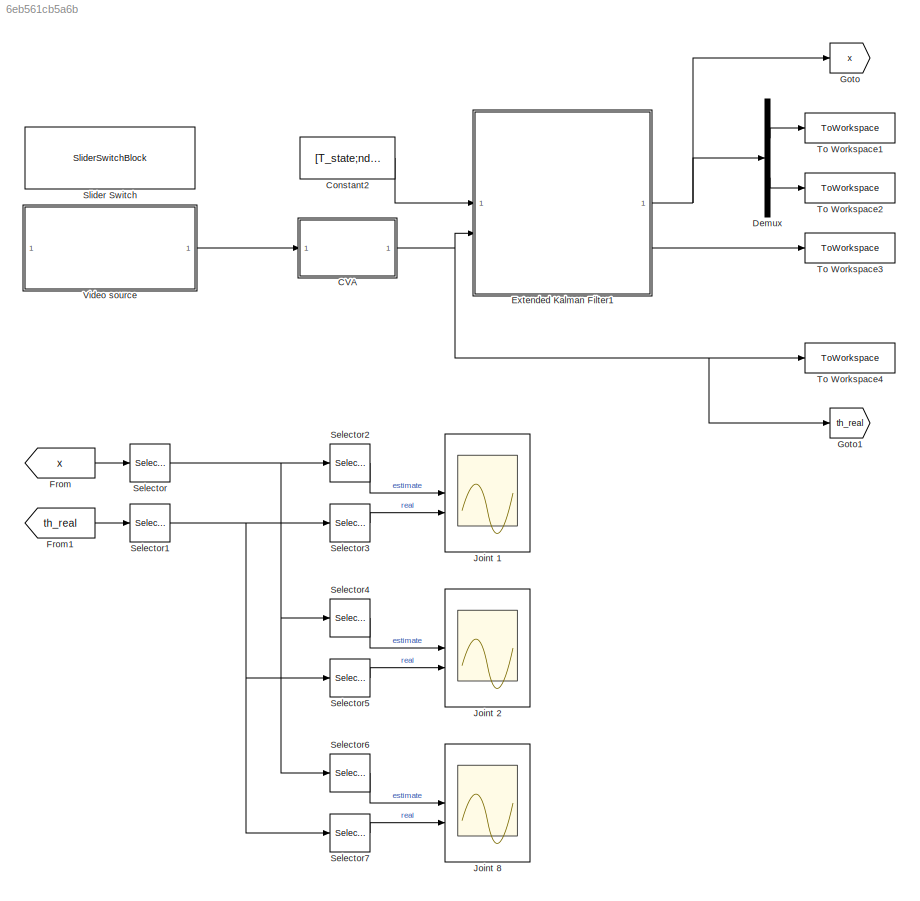
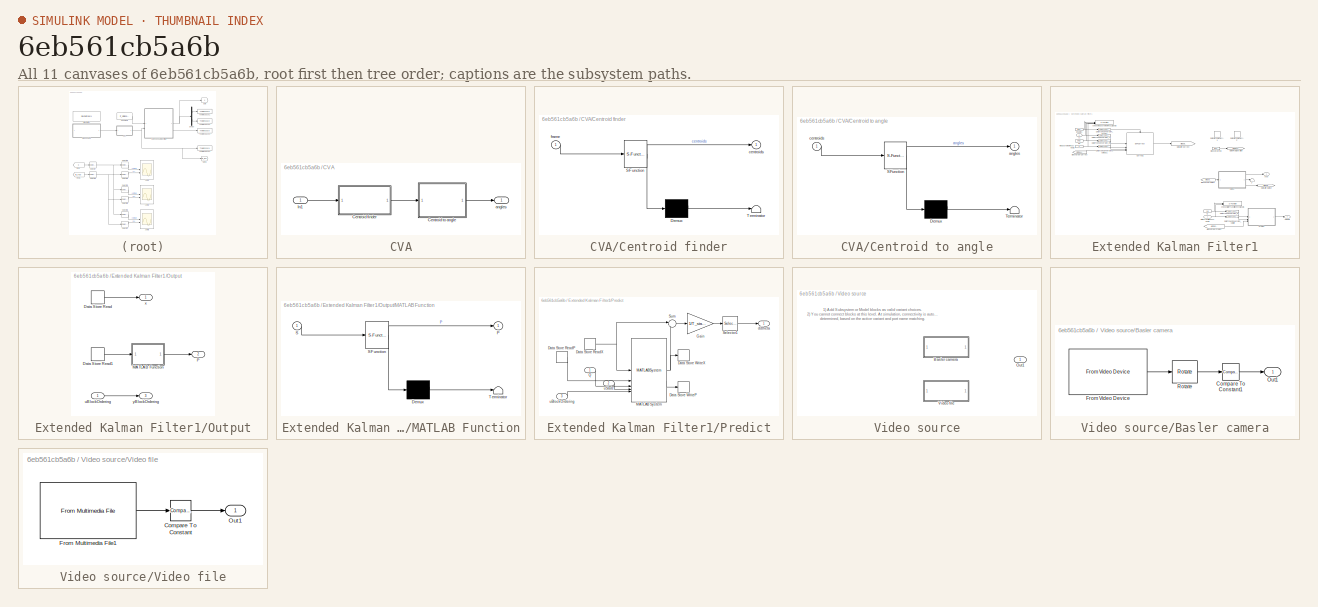
[diagram: thumbnail index - all 11 canvases of the model, root first then tree order]
MODEL slx_6eb561cb5a6b
KIND model
CONFIG AbsTol = auto
CONFIG EnableMultiTasking = off
CONFIG FixedStep = min(T_state,Ts)
CONFIG InitFcn = NPSimulink_init
CONFIG MaxStep = auto
CONFIG MinStep = auto
CONFIG RelTol = 1e-3
CONFIG SampleTimeConstraint = Unconstrained
CONFIG SolverName = FixedStepAuto
CONFIG StartTime = 0.0
CONFIG StopTime = Tstop
BLOCK [SubSystem] CVA
BLOCK [SubSystem] CVA/Centroid finder
  ErrorFcn = Stateflow.Translate.translate
  PermitHierarchicalResolution = ExplicitOnly
  SFBlockType = MATLAB Function
  TreatAsAtomicUnit = on
BLOCK [Demux] CVA/Centroid finder/ Demux 
  Outputs = 1
BLOCK [S-Function] CVA/Centroid finder/ SFunction 
  EnableBusSupport = off
  FunctionName = sf_sfun
  PortCounts = [1 2]
  SFcnIsStateOwnerBlock = off
  SFunctionDeploymentMode = off
  Tag = Stateflow S-Function 2
BLOCK [Terminator] CVA/Centroid finder/ Terminator 
BLOCK [Outport] CVA/Centroid finder/centroids
BLOCK [Inport] CVA/Centroid finder/frame
BLOCK [SubSystem] CVA/Centroid to angle
  ErrorFcn = Stateflow.Translate.translate
  PermitHierarchicalResolution = ExplicitOnly
  SFBlockType = MATLAB Function
  TreatAsAtomicUnit = on
BLOCK [Demux] CVA/Centroid to angle/ Demux 
  Outputs = 1
BLOCK [S-Function] CVA/Centroid to angle/ SFunction 
  EnableBusSupport = off
  FunctionName = sf_sfun
  PortCounts = [1 2]
  SFcnIsStateOwnerBlock = off
  SFunctionDeploymentMode = off
  Tag = Stateflow S-Function 3
BLOCK [Terminator] CVA/Centroid to angle/ Terminator 
BLOCK [Outport] CVA/Centroid to angle/angles
BLOCK [Inport] CVA/Centroid to angle/centroids
BLOCK [Inport] CVA/In1
BLOCK [Outport] CVA/angles
BLOCK [Constant] Constant2
  Value = [T_state;ndof]
BLOCK [Demux] Demux
  Outputs = 2
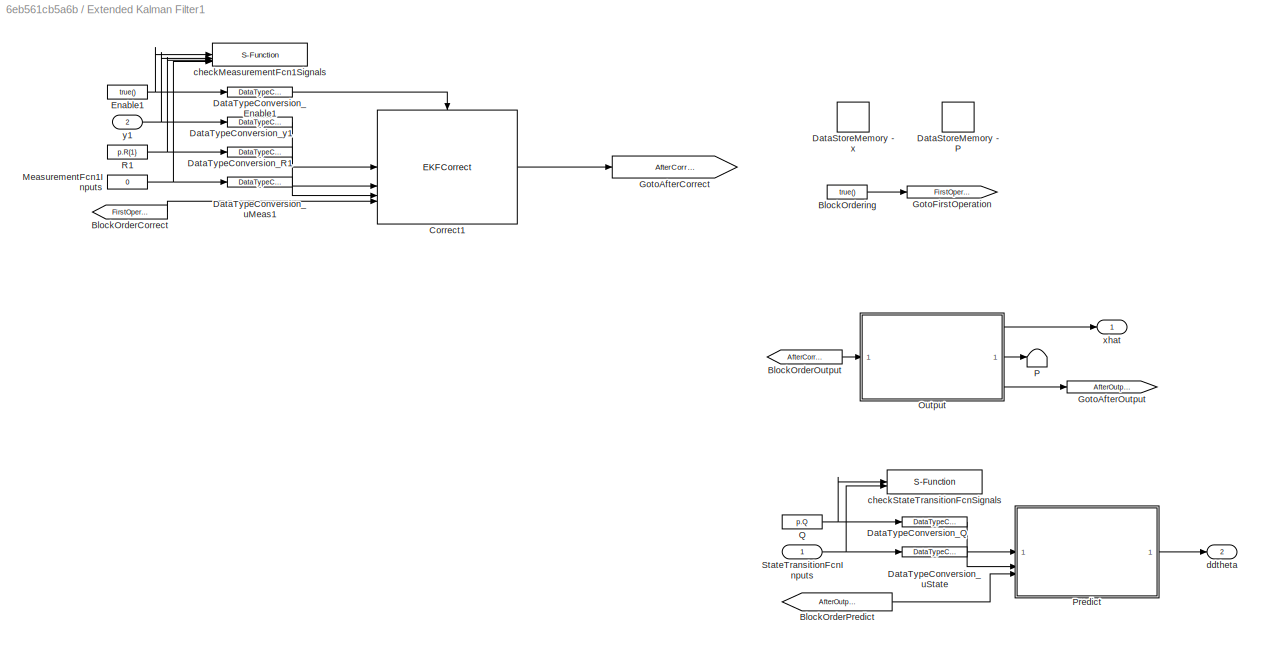
BLOCK [SubSystem] Extended Kalman Filter1
  AncestorBlock = cstblocks/State Estimation/Extended Kalman Filter
  LibrarySourceBlock = cstblocks/State Estimation/Extended Kalman Filter
BLOCK [From] Extended Kalman Filter1/BlockOrderCorrect
  GotoTag = FirstOperation
BLOCK [From] Extended Kalman Filter1/BlockOrderOutput
  GotoTag = AfterCorrect
BLOCK [From] Extended Kalman Filter1/BlockOrderPredict
  GotoTag = AfterOutput
BLOCK [Constant] Extended Kalman Filter1/BlockOrdering
  OutDataTypeStr = boolean
  Value = true()
BLOCK [Reference] Extended Kalman Filter1/Correct1  REF=sharedTrackingLibrary/Extras/EKFCorrect
  SourceBlock = sharedTrackingLibrary/Extras/EKFCorrect
  SourceType = EKFCorrect
BLOCK [DataStoreMemory] Extended Kalman Filter1/DataStoreMemory - P
  DataStoreName = P
  InitialValue = p.InitialCovariance
  OutDataTypeStr = p.DataType
  ShowAdditionalParam = off
BLOCK [DataStoreMemory] Extended Kalman Filter1/DataStoreMemory - x
  DataStoreName = x
  InitialValue = p.InitialState
  OutDataTypeStr = p.DataType
  ShowAdditionalParam = off
BLOCK [DataTypeConversion] Extended Kalman Filter1/DataTypeConversion_Enable1
  OutDataTypeStr = boolean
  RndMeth = Floor
  SaturateOnIntegerOverflow = off
BLOCK [DataTypeConversion] Extended Kalman Filter1/DataTypeConversion_Q
  OutDataTypeStr = p.DataType
  RndMeth = Floor
  SaturateOnIntegerOverflow = off
BLOCK [DataTypeConversion] Extended Kalman Filter1/DataTypeConversion_R1
  OutDataTypeStr = p.DataType
  RndMeth = Floor
  SaturateOnIntegerOverflow = off
BLOCK [DataTypeConversion] Extended Kalman Filter1/DataTypeConversion_uMeas1
  OutDataTypeStr = p.DataType
  RndMeth = Floor
  SaturateOnIntegerOverflow = off
BLOCK [DataTypeConversion] Extended Kalman Filter1/DataTypeConversion_uState
  OutDataTypeStr = p.DataType
  RndMeth = Floor
  SaturateOnIntegerOverflow = off
BLOCK [DataTypeConversion] Extended Kalman Filter1/DataTypeConversion_y1
  OutDataTypeStr = p.DataType
  RndMeth = Floor
  SaturateOnIntegerOverflow = off
BLOCK [Constant] Extended Kalman Filter1/Enable1
  SampleTime = p.SampleTimes.MeasurementFcn(1)
  Value = true()
BLOCK [Goto] Extended Kalman Filter1/GotoAfterCorrect
  GotoTag = AfterCorrect
BLOCK [Goto] Extended Kalman Filter1/GotoAfterOutput
  GotoTag = AfterOutput
BLOCK [Goto] Extended Kalman Filter1/GotoFirstOperation
  GotoTag = FirstOperation
BLOCK [Constant] Extended Kalman Filter1/MeasurementFcn1Inputs
  OutDataTypeStr = p.DataType
  SampleTime = p.SampleTimes.MeasurementFcn(1)
  Value = 0
BLOCK [SubSystem] Extended Kalman Filter1/Output
  SystemSampleTime = p.SampleTimes.Output
  TreatAsAtomicUnit = on
BLOCK [DataStoreRead] Extended Kalman Filter1/Output/Data Store Read
  DataStoreName = x
  IndexOptions = Index vector (dialog)
  Indices = 1
  OutputSizes = 1
BLOCK [DataStoreRead] Extended Kalman Filter1/Output/Data Store Read1
  DataStoreName = P
  IndexOptions = Index vector (dialog)
  Indices = 1
  OutputSizes = 1
BLOCK [SubSystem] Extended Kalman Filter1/Output/MATLAB Function
  ErrorFcn = Stateflow.Translate.translate
  PermitHierarchicalResolution = ExplicitOnly
  SFBlockType = MATLAB Function
  TreatAsAtomicUnit = on
BLOCK [Demux] Extended Kalman Filter1/Output/MATLAB Function/ Demux 
  Outputs = 1
BLOCK [S-Function] Extended Kalman Filter1/Output/MATLAB Function/ SFunction 
  EnableBusSupport = off
  FunctionName = sf_sfun
  PortCounts = [1 2]
  SFcnIsStateOwnerBlock = off
  SFunctionDeploymentMode = off
  Tag = Stateflow S-Function 5
BLOCK [Terminator] Extended Kalman Filter1/Output/MATLAB Function/ Terminator 
BLOCK [Outport] Extended Kalman Filter1/Output/MATLAB Function/P
BLOCK [Inport] Extended Kalman Filter1/Output/MATLAB Function/S
BLOCK [Outport] Extended Kalman Filter1/Output/P
  Port = 2
  VectorParamsAs1DForOutWhenUnconnected = off
BLOCK [Inport] Extended Kalman Filter1/Output/uBlockOrdering
BLOCK [Outport] Extended Kalman Filter1/Output/x
  VectorParamsAs1DForOutWhenUnconnected = off
BLOCK [Outport] Extended Kalman Filter1/Output/yBlockOrdering
  Port = 3
  VectorParamsAs1DForOutWhenUnconnected = off
BLOCK [Terminator] Extended Kalman Filter1/P
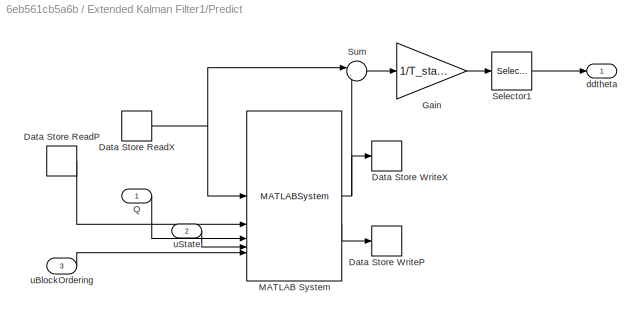
BLOCK [SubSystem] Extended Kalman Filter1/Predict
  SystemSampleTime = p.SampleTimes.StateTransitionFcn
  TreatAsAtomicUnit = on
BLOCK [DataStoreRead] Extended Kalman Filter1/Predict/Data Store ReadP
  DataStoreName = P
  IndexOptions = Index vector (dialog)
  Indices = 1
  OutputSizes = 1
BLOCK [DataStoreRead] Extended Kalman Filter1/Predict/Data Store ReadX
  DataStoreName = x
  IndexOptions = Index vector (dialog)
  Indices = 1
  OutputSizes = 1
BLOCK [DataStoreWrite] Extended Kalman Filter1/Predict/Data Store WriteP
  DataStoreName = P
  IndexOptions = Index vector (dialog)
  Indices = 1
  OutputSizes = 1
BLOCK [DataStoreWrite] Extended Kalman Filter1/Predict/Data Store WriteX
  DataStoreName = x
  IndexOptions = Index vector (dialog)
  Indices = 1
  OutputSizes = 1
BLOCK [Gain] Extended Kalman Filter1/Predict/Gain
  Gain = 1/T_state
BLOCK [MATLABSystem] Extended Kalman Filter1/Predict/MATLAB System
  DataType = DataType
  DlgParamStruct = pS
  MaskType = matlabshared.tracking.internal.blocks.ekfPredictFcn
  SLFcn = SLFcnsToRegister
  SimulateUsing = Code generation
  System = matlabshared.tracking.internal.blocks.ekfPredictFcn
BLOCK [Inport] Extended Kalman Filter1/Predict/Q
  SampleTime = SampleTime
BLOCK [Selector] Extended Kalman Filter1/Predict/Selector1
  IndexOptions = Index vector (dialog)
  Indices = 11:20
  InputPortWidth = 20
  OutputSizes = 1
BLOCK [Sum] Extended Kalman Filter1/Predict/Sum
  Inputs = |-+
BLOCK [Outport] Extended Kalman Filter1/Predict/ddtheta
BLOCK [Inport] Extended Kalman Filter1/Predict/uBlockOrdering
  Port = 3
  SampleTime = SampleTime
BLOCK [Inport] Extended Kalman Filter1/Predict/uState
  Port = 2
  SampleTime = SampleTime
BLOCK [Constant] Extended Kalman Filter1/Q
  SampleTime = p.SampleTimes.StateTransitionFcn
  Value = p.Q
BLOCK [Constant] Extended Kalman Filter1/R1
  SampleTime = p.SampleTimes.MeasurementFcn(1)
  Value = p.R{1}
BLOCK [Inport] Extended Kalman Filter1/StateTransitionFcnInputs
BLOCK [S-Function] Extended Kalman Filter1/checkMeasurementFcn1Signals
  EnableBusSupport = off
  FunctionName = ekfukfCheckSignals
  Parameters = signalCheck.BlockPath, signalCheck.MeasurementFcn{1}.PortNames, signalCheck.MeasurementFcn{1}.SampleTime, signalCheck.DataType, signalCheck.MeasurementFcn{1}.PortDimensions, 1, signalCheck.MeasurementFcn{1}.HasAdditiveNoise
  SFcnIsStateOwnerBlock = off
  SFunctionDeploymentMode = off
BLOCK [S-Function] Extended Kalman Filter1/checkStateTransitionFcnSignals
  EnableBusSupport = off
  FunctionName = ekfukfCheckSignals
  Parameters = signalCheck.BlockPath, signalCheck.StateTransitionFcn.PortNames, signalCheck.StateTransitionFcn.SampleTime, signalCheck.DataType, signalCheck.StateTransitionFcn.PortDimensions, 0, signalCheck.StateTransitionFcn.HasAdditiveNoise
  SFcnIsStateOwnerBlock = off
  SFunctionDeploymentMode = off
BLOCK [Outport] Extended Kalman Filter1/ddtheta
  Port = 2
BLOCK [Outport] Extended Kalman Filter1/xhat
  VectorParamsAs1DForOutWhenUnconnected = off
BLOCK [Inport] Extended Kalman Filter1/y1
  Port = 2
BLOCK [From] From
  GotoTag = x
BLOCK [From] From1
  GotoTag = th_real
BLOCK [Goto] Goto
  GotoTag = x
BLOCK [Goto] Goto1
  GotoTag = th_real
BLOCK [Scope] Joint 1
  ActiveDisplayYMaximum = 0.62021023126554364
  ActiveDisplayYMinimum = -0.70785364781304394
  Floating = off
  GraphicalSettings = {"Style":{"BackgroundColor":[0.12941176470588237,0.12941176470588237,0.12941176470588237],"AxesColor":[0.07058823529411765,0.07058823529411765,0.07058823529411765],"LabelsColor":[0.8509803921568627,0.8509803921568627,0.8509803921568627],"PreserveColors":false,"Visible":[true,true],"LineStyle":["-","-"],"LineWidth":[1.5,1.5],"BarWidth":[0.9,0.9],"LineColor":["auto","auto"],"LineFaceAlpha":[1,1],"Li...<+2108ch>
  MultipleDisplayCache = [{"MaxYLimMag":0.70785364781304394,"MaxYLimReal":0.62021023126554364,"MinYLimMag":0,"MinYLimReal":-0.70785364781304394,"PlotAsMagnitudePhase":false,"ShowGrid":true,"ShowLegend":true,"Title":"%<SignalLabel>","YLabel":""}]
  NumInputPorts = 2
  ScopeFrameLocation = window
  ShowLegend = on
  WasSavedAsWebScope = on
  WindowPosition = [1103.000000,488.000000,560.000000,420.000000,]
BLOCK [Scope] Joint 2
  ActiveDisplayYMaximum = 0.13525987224152178
  ActiveDisplayYMinimum = -0.14772714533772752
  DataLoggingVariableName = ScopeData1
  Floating = off
  GraphicalSettings = {"Style":{"BackgroundColor":[0.12941176470588237,0.12941176470588237,0.12941176470588237],"AxesColor":[0.07058823529411765,0.07058823529411765,0.07058823529411765],"LabelsColor":[0.8509803921568627,0.8509803921568627,0.8509803921568627],"PreserveColors":false,"Visible":[true,true],"LineStyle":["-","-"],"LineWidth":[1.5,1.5],"BarWidth":[0.9,0.9],"LineColor":["auto","auto"],"LineFaceAlpha":[1,1],"Li...<+2113ch>
  MultipleDisplayCache = [{"MaxYLimMag":0.14772714533772752,"MaxYLimReal":0.13525987224152178,"MinYLimMag":0,"MinYLimReal":-0.14772714533772752,"PlotAsMagnitudePhase":false,"ShowGrid":true,"ShowLegend":true,"Title":"%<SignalLabel>","YLabel":""}]
  NumInputPorts = 2
  ScopeFrameLocation = window
  ShowLegend = on
  WasSavedAsWebScope = on
  WindowPosition = [1653.000000,488.000000,560.000000,420.000000,]
BLOCK [Scope] Joint 8
  ActiveDisplayYMaximum = 0.25534393366068731
  ActiveDisplayYMinimum = -0.36881498811694247
  DataLoggingVariableName = ScopeData2
  Floating = off
  GraphicalSettings = {"Style":{"BackgroundColor":[0.12941176470588237,0.12941176470588237,0.12941176470588237],"AxesColor":[0.07058823529411765,0.07058823529411765,0.07058823529411765],"LabelsColor":[0.8509803921568627,0.8509803921568627,0.8509803921568627],"PreserveColors":false,"Visible":[true,true],"LineStyle":["-","-"],"LineWidth":[1.5,1.5],"BarWidth":[0.9,0.9],"LineColor":["auto","auto"],"LineFaceAlpha":[1,1],"Li...<+2112ch>
  MultipleDisplayCache = [{"MaxYLimMag":0.36881498811694247,"MaxYLimReal":0.25534393366068731,"MinYLimMag":0,"MinYLimReal":-0.36881498811694247,"PlotAsMagnitudePhase":false,"ShowGrid":true,"ShowLegend":true,"Title":"%<SignalLabel>","YLabel":""}]
  NumInputPorts = 2
  ScopeFrameLocation = window
  ShowLegend = on
  WasSavedAsWebScope = on
  WindowPosition = [2221.000000,491.000000,560.000000,420.000000,]
BLOCK [Selector] Selector
  IndexOptions = Index vector (dialog)
  Indices = [1 2 8]
  InputPortWidth = 20
  OutputSizes = 1
BLOCK [Selector] Selector1
  IndexOptions = Index vector (dialog)
  Indices = [1 2 8]
  InputPortWidth = 10
  OutputSizes = 1
BLOCK [Selector] Selector2
  IndexOptions = Index vector (dialog)
  Indices = 1
  InputPortWidth = 3
  OutputSizes = 1
BLOCK [Selector] Selector3
  IndexOptions = Index vector (dialog)
  Indices = 1
  InputPortWidth = 3
  OutputSizes = 1
BLOCK [Selector] Selector4
  IndexOptions = Index vector (dialog)
  Indices = 2
  InputPortWidth = 3
  OutputSizes = 1
BLOCK [Selector] Selector5
  IndexOptions = Index vector (dialog)
  Indices = 2
  InputPortWidth = 3
  OutputSizes = 1
BLOCK [Selector] Selector6
  IndexOptions = Index vector (dialog)
  Indices = 3
  InputPortWidth = 3
  OutputSizes = 1
BLOCK [Selector] Selector7
  IndexOptions = Index vector (dialog)
  Indices = 3
  InputPortWidth = 3
  OutputSizes = 1
BLOCK [SliderSwitchBlock] Slider Switch
BLOCK [ToWorkspace] To Workspace1
  FixptAsFi = on
  MaxDataPoints = inf
  SampleTime = 0.01
  VariableName = th_ekf
BLOCK [ToWorkspace] To Workspace2
  FixptAsFi = on
  MaxDataPoints = inf
  SampleTime = 0.01
  VariableName = dth_ekf
BLOCK [ToWorkspace] To Workspace3
  FixptAsFi = on
  MaxDataPoints = inf
  SampleTime = 0.01
  VariableName = ddth_ekf
BLOCK [ToWorkspace] To Workspace4
  FixptAsFi = on
  MaxDataPoints = inf
  SampleTime = 0.01
  VariableName = th_real
BLOCK [SubSystem] Video source
  Variant = on
BLOCK [SubSystem] Video source/Basler camera
  VariantControl = hardwareEnable==true
BLOCK [Reference] Video source/Basler camera/Compare To Constant1  REF=simulink/Logic and Bit
Operations/Compare
To Constant
  SourceBlock = simulink/Logic and Bit\nOperations/Compare\nTo Constant
  SourceType = Compare To Constant
BLOCK [Reference] Video source/Basler camera/From Video Device  REF=imaqlib/From Video Device
  SourceBlock = imaqlib/From Video Device
  SourceType = From Video Device
  UserDataPersistent = on
BLOCK [Outport] Video source/Basler camera/Out1
BLOCK [Reference] Video source/Basler camera/Rotate  REF=visiongeotforms/Rotate
  SourceBlock = visiongeotforms/Rotate
  SourceType = Rotate
BLOCK [Outport] Video source/Out1
BLOCK [SubSystem] Video source/Video file
  VariantControl = hardwareEnable==false
BLOCK [Reference] Video source/Video file/Compare To Constant  REF=simulink/Logic and Bit
Operations/Compare
To Constant
  SourceBlock = simulink/Logic and Bit\nOperations/Compare\nTo Constant
  SourceType = Compare To Constant
BLOCK [Reference] Video source/Video file/From Multimedia File1  REF=dspvision/From Multimedia File
  LibrarySourceBlock = visionsources/From Multimedia File
  SourceBlock = dspvision/From Multimedia File
  SourceType = From Multimedia File
BLOCK [Outport] Video source/Video file/Out1
ANNOTATION Video source: 1) Add Subsystem or Model blocks as valid variant choices. 2) You cannot connect blocks at this level. At simulation, connectivity is automatically determined, based on the active variant and port name matching.
LINE CVA/Centroid finder:1 -> CVA/Centroid to angle:1
LINE CVA/Centroid to angle:1 -> CVA/angles:1
LINE CVA/In1:1 -> CVA/Centroid finder:1
NET CVA:1 -> Extended Kalman Filter1:2, Goto1:1, To Workspace4:1
LINE Constant2:1 -> Extended Kalman Filter1:1
LINE Demux:1 -> To Workspace1:1
LINE Demux:2 -> To Workspace2:1
NET Extended Kalman Filter1:1 -> Demux:1, Goto:1
LINE Extended Kalman Filter1:2 -> To Workspace3:1
LINE From1:1 -> Selector1:1
LINE From:1 -> Selector:1
NET Selector1:1 -> Selector3:1, Selector5:1, Selector7:1
LINE Selector2:1 -> Joint 1:1
LINE Selector3:1 -> Joint 1:2
LINE Selector4:1 -> Joint 2:1
LINE Selector5:1 -> Joint 2:2
LINE Selector6:1 -> Joint 8:1
LINE Selector7:1 -> Joint 8:2
NET Selector:1 -> Selector2:1, Selector4:1, Selector6:1
LINE Video source/Basler camera/Compare To Constant1:1 -> Video source/Basler camera/Out1:1
LINE Video source/Basler camera/From Video Device:1 -> Video source/Basler camera/Rotate:1
LINE Video source/Basler camera/Rotate:1 -> Video source/Basler camera/Compare To Constant1:1
LINE Video source/Video file/Compare To Constant:1 -> Video source/Video file/Out1:1
LINE Video source/Video file/From Multimedia File1:1 -> Video source/Video file/Compare To Constant:1
LINE Video source:1 -> CVA:1
note: NET lines group one-source signal fan-out (src -> all destinations, sorted); 1:1 wires keep LINE
CHART CVA/Centroid to angle states=1 transitions=1
  STATE_LABEL 'eML_blk_kernel()'
  STATE_LABEL 'SCRIPT:\nfunction angles= fcn(centroids)\nN = length(centroids);\nangles = zeros(N-1,1);\nfor i = 1:N-1\n    if i == 1\n        a = centroids(i, :) - [0 1];\n        b = centroids(i, :);\n        c = centroids(i+1,:);\n\n        u1 = [b(1) - a(1); b(2) - a(2); 0];\n        u2 = [c(1) - b(1); c(2) - b(2); 0];\n\n        do = u1(1)*u2(1) + u1(2)*u2(2);\n        cr = u1(1)*u2(2) - u1(2)*u2(1);\n\n        angles(i) =...<+335ch>'
CHART Extended Kalman Filter1/Output/MATLAB Function states=1 transitions=1
  STATE_LABEL 'eML_blk_kernel()'
  STATE_LABEL "SCRIPT:\nfunction P = fcn(S)\n    \n    % Get back Covariance from Square-root Covariance\n    P = S*S';\n    \nend\n"
CHART CVA/Centroid finder states=1 transitions=1
  STATE_LABEL 'eML_blk_kernel()'
  STATE_LABEL "SCRIPT:\nfunction centroids = fcn(frame)\nrp = regionprops(frame, 'Centroid');\nN = 11;\ncentroids = zeros(N,2);\n\nc = zeros(N,2);\nfor i = 1:N\n    c(i,:) = rp(i).Centroid;\nend\n\n\n[~, idx] = sort(c(:,2), 1);\ncentroids(:,:) = c(idx, :);"
CHART  states=0 transitions=0
CHART  states=0 transitions=0
CHART  states=0 transitions=0
